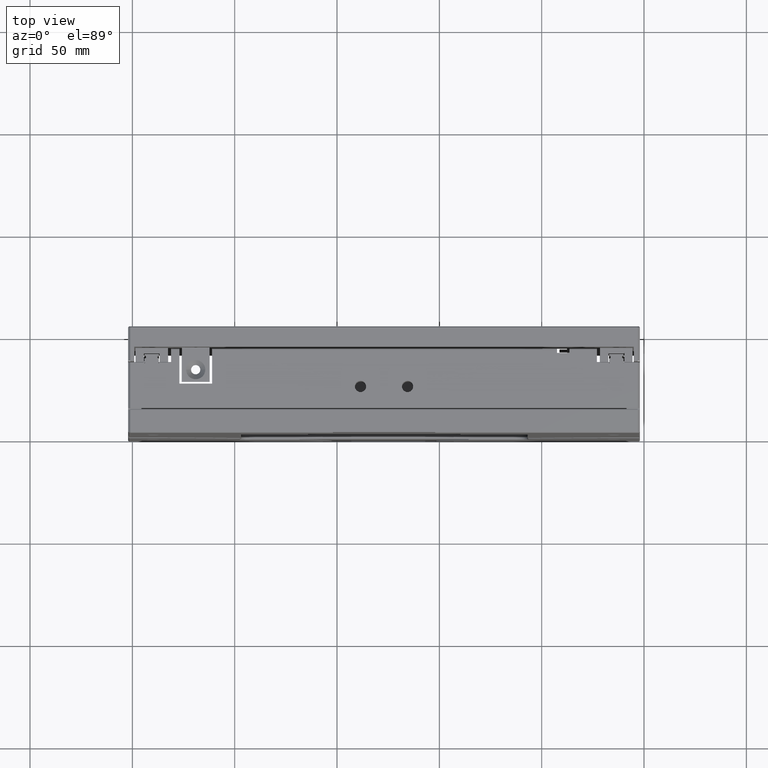
[diagram: clean part render]
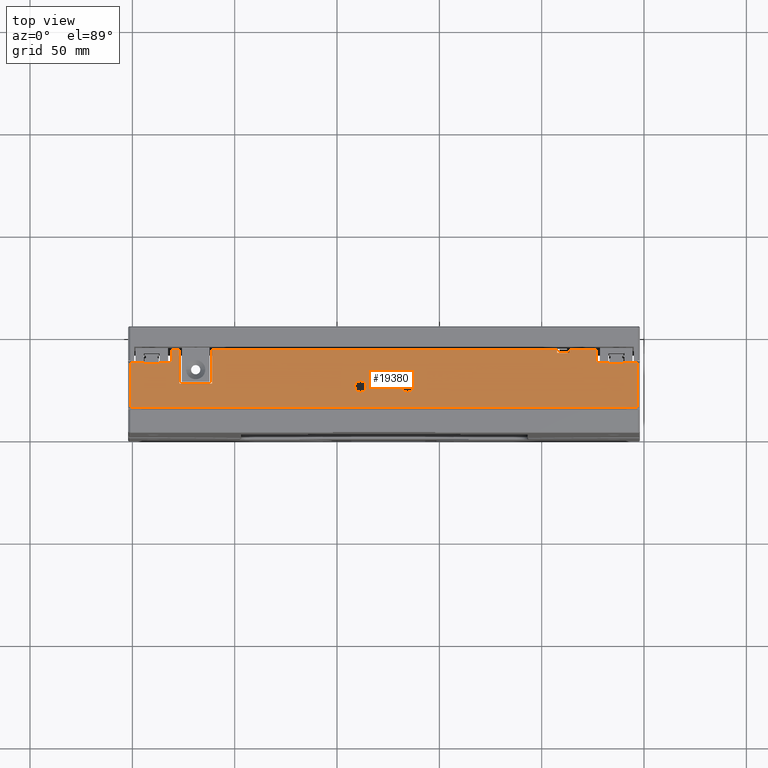
[diagram: same view with one face highlighted and labeled with its STEP entity id]
A machine part, top view. The second image highlights one B-rep face of the part: STEP entity #19380.
In plain terms, the highlighted planar face has unit normal (0, 0, -1).
Its self-contained STEP definition (entity closure, byte-faithful):
#9 = CIRCLE ( 'NONE', #12028, 2.774999999999999500 ) ;
#161 = CARTESIAN_POINT ( 'NONE',  ( -92.54777213772155200, 39.00000000000000700, 250.0000000000000000 ) ) ;
#293 = VECTOR ( 'NONE', #9974, 1000.000000000000000 ) ;
#465 = EDGE_CURVE ( 'NONE', #9425, #8209, #20233, .T. ) ;
#562 = CARTESIAN_POINT ( 'NONE',  ( -52.04777213772152300, 24.00000000000001400, 250.0000000000000600 ) ) ;
#594 = CARTESIAN_POINT ( 'NONE',  ( -73.04777213772152300, 34.50000000000000700, 249.9999999999999700 ) ) ;
#613 = CARTESIAN_POINT ( 'NONE',  ( -86.54777213772155200, 40.80000000000003300, 250.0000000000000600 ) ) ;
#674 = EDGE_CURVE ( 'NONE', #3188, #15399, #8720, .T. ) ;
#732 = EDGE_CURVE ( 'NONE', #11530, #23120, #8695, .T. ) ;
#776 = CARTESIAN_POINT ( 'NONE',  ( -67.04777213772155200, 34.29999999999991900, 249.9999999999999700 ) ) ;
#810 = CARTESIAN_POINT ( 'NONE',  ( -294.0477721377216100, 34.00000000000000700, 249.9999999999999400 ) ) ;
#875 = EDGE_CURVE ( 'NONE', #1565, #9425, #4140, .T. ) ;
#1165 = EDGE_CURVE ( 'NONE', #3776, #11257, #7807, .T. ) ;
#1535 = EDGE_LOOP ( 'NONE', ( #10822, #20528 ) ) ;
#1565 = VERTEX_POINT ( 'NONE', #7939 ) ;
#1592 = VERTEX_POINT ( 'NONE', #613 ) ;
#1601 = ORIENTED_EDGE ( 'NONE', *, *, #875, .T. ) ;
#1619 = CARTESIAN_POINT ( 'NONE',  ( -294.0477721377216100, 34.00000000000000700, 249.9999999999999400 ) ) ;
#1937 = DIRECTION ( 'NONE',  ( 0.0000000000000000000, 1.000000000000000000, 1.224646799147353000E-016 ) ) ;
#2041 = EDGE_CURVE ( 'NONE', #1592, #23821, #17834, .T. ) ;
#2065 = ORIENTED_EDGE ( 'NONE', *, *, #23590, .T. ) ;
#2076 = EDGE_CURVE ( 'NONE', #15399, #3188, #15526, .T. ) ;
#2115 = VECTOR ( 'NONE', #19767, 1000.000000000000000 ) ;
#2239 = FACE_OUTER_BOUND ( 'NONE', #13338, .T. ) ;
#2267 = ORIENTED_EDGE ( 'NONE', *, *, #23528, .T. ) ;
#2323 = CARTESIAN_POINT ( 'NONE',  ( -60.04777213772154500, 34.00000000000000700, 250.0000000000000000 ) ) ;
#2338 = DIRECTION ( 'NONE',  ( 0.0000000000000000000, 1.000000000000000000, 0.0000000000000000000 ) ) ;
#2508 = CARTESIAN_POINT ( 'NONE',  ( -52.04777213772152300, 39.00000000000000700, 250.0000000000000600 ) ) ;
#2618 = CARTESIAN_POINT ( 'NONE',  ( -281.0477721377216100, 40.80000000000003300, 249.9999999999999100 ) ) ;
#2881 = VERTEX_POINT ( 'NONE', #7933 ) ;
#3188 = VERTEX_POINT ( 'NONE', #18549 ) ;
#3364 = ORIENTED_EDGE ( 'NONE', *, *, #2041, .T. ) ;
#3435 = DIRECTION ( 'NONE',  ( -9.714451382752058500E-017, -1.224646799147353200E-016, 1.000000000000000000 ) ) ;
#3636 = ORIENTED_EDGE ( 'NONE', *, *, #5764, .T. ) ;
#3686 = CARTESIAN_POINT ( 'NONE',  ( -165.5477721377215800, 25.37500000000000700, 250.0000000000000000 ) ) ;
#3776 = VERTEX_POINT ( 'NONE', #161 ) ;
#3869 = EDGE_CURVE ( 'NONE', #19202, #13395, #9, .T. ) ;
#3895 = EDGE_CURVE ( 'NONE', #2881, #1565, #4113, .T. ) ;
#4056 = VERTEX_POINT ( 'NONE', #16080 ) ;
#4113 = LINE ( 'NONE', #562, #7249 ) ;
#4140 = LINE ( 'NONE', #19220, #6714 ) ;
#4341 = LINE ( 'NONE', #23526, #9200 ) ;
#4365 = VERTEX_POINT ( 'NONE', #5438 ) ;
#4566 = EDGE_CURVE ( 'NONE', #23823, #8428, #4648, .T. ) ;
#4648 = LINE ( 'NONE', #6234, #16684 ) ;
#4913 = AXIS2_PLACEMENT_3D ( 'NONE', #17500, #22994, #8431 ) ;
#5220 = DIRECTION ( 'NONE',  ( -1.000000000000000000, 5.268570399476662800E-032, -4.302114212150675500E-016 ) ) ;
#5290 = DIRECTION ( 'NONE',  ( 0.0000000000000000000, 1.000000000000000000, 0.0000000000000000000 ) ) ;
#5305 = ORIENTED_EDGE ( 'NONE', *, *, #17285, .T. ) ;
#5374 = CARTESIAN_POINT ( 'NONE',  ( -287.0477721377216100, 34.00000000000000700, 249.9999999999999400 ) ) ;
#5438 = CARTESIAN_POINT ( 'NONE',  ( -261.0477721377215500, 40.80000000000003300, 249.9999999999999700 ) ) ;
#5672 = VERTEX_POINT ( 'NONE', #22874 ) ;
#5764 = EDGE_CURVE ( 'NONE', #23120, #10203, #19802, .T. ) ;
#6011 = CARTESIAN_POINT ( 'NONE',  ( -301.0477721377215500, 12.20000000000016300, 249.9999999999999400 ) ) ;
#6234 = CARTESIAN_POINT ( 'NONE',  ( -287.0477721377216100, 34.00000000000000700, 249.9999999999999400 ) ) ;
#6272 = CARTESIAN_POINT ( 'NONE',  ( -92.54777213772155200, 40.80000000000003300, 250.0000000000000600 ) ) ;
#6541 = ORIENTED_EDGE ( 'NONE', *, *, #15057, .F. ) ;
#6564 = EDGE_CURVE ( 'NONE', #11257, #4365, #14825, .T. ) ;
#6714 = VECTOR ( 'NONE', #17445, 1000.000000000000000 ) ;
#6742 = EDGE_CURVE ( 'NONE', #9918, #1592, #10218, .T. ) ;
#6784 = LINE ( 'NONE', #2323, #14796 ) ;
#6836 = ORIENTED_EDGE ( 'NONE', *, *, #12771, .T. ) ;
#7249 = VECTOR ( 'NONE', #17121, 1000.000000000000000 ) ;
#7288 = ORIENTED_EDGE ( 'NONE', *, *, #12550, .T. ) ;
#7395 = ORIENTED_EDGE ( 'NONE', *, *, #732, .T. ) ;
#7550 = VERTEX_POINT ( 'NONE', #7786 ) ;
#7563 = VECTOR ( 'NONE', #5220, 1000.000000000000000 ) ;
#7577 = VECTOR ( 'NONE', #9886, 1000.000000000000000 ) ;
#7786 = CARTESIAN_POINT ( 'NONE',  ( -287.0477721377216100, 34.29999999999991900, 249.9999999999999400 ) ) ;
#7802 = VECTOR ( 'NONE', #21375, 1000.000000000000000 ) ;
#7807 = LINE ( 'NONE', #23822, #21061 ) ;
#7933 = CARTESIAN_POINT ( 'NONE',  ( -261.0477721377215500, 24.00000000000001400, 250.0000000000000600 ) ) ;
#7939 = CARTESIAN_POINT ( 'NONE',  ( -277.0477721377216100, 24.00000000000001400, 250.0000000000000600 ) ) ;
#7952 = ORIENTED_EDGE ( 'NONE', *, *, #13752, .T. ) ;
#8209 = VERTEX_POINT ( 'NONE', #2618 ) ;
#8239 = DIRECTION ( 'NONE',  ( -1.000000000000000000, 5.268570399476662800E-032, -4.302114212150675500E-016 ) ) ;
#8428 = VERTEX_POINT ( 'NONE', #5374 ) ;
#8431 = DIRECTION ( 'NONE',  ( 0.0000000000000000000, -1.000000000000000000, -1.224646799147353000E-016 ) ) ;
#8560 = ORIENTED_EDGE ( 'NONE', *, *, #465, .T. ) ;
#8563 = VECTOR ( 'NONE', #10382, 1000.000000000000000 ) ;
#8570 = FACE_BOUND ( 'NONE', #1535, .T. ) ;
#8695 = LINE ( 'NONE', #16977, #9836 ) ;
#8720 = CIRCLE ( 'NONE', #19231, 2.774999999999999500 ) ;
#8779 = DIRECTION ( 'NONE',  ( 0.0000000000000000000, 1.000000000000000000, 1.224646799147353000E-016 ) ) ;
#8836 = CARTESIAN_POINT ( 'NONE',  ( -52.04777213772152300, 34.29999999999997600, 250.0000000000000600 ) ) ;
#9200 = VECTOR ( 'NONE', #14311, 1000.000000000000000 ) ;
#9216 = LINE ( 'NONE', #17311, #22466 ) ;
#9329 = LINE ( 'NONE', #17903, #2115 ) ;
#9425 = VERTEX_POINT ( 'NONE', #14322 ) ;
#9660 = VERTEX_POINT ( 'NONE', #11105 ) ;
#9727 = ORIENTED_EDGE ( 'NONE', *, *, #20300, .T. ) ;
#9803 = DIRECTION ( 'NONE',  ( 1.000000000000000000, -5.268570399476662800E-032, 4.302114212150676000E-016 ) ) ;
#9836 = VECTOR ( 'NONE', #20685, 1000.000000000000000 ) ;
#9875 = ORIENTED_EDGE ( 'NONE', *, *, #21119, .F. ) ;
#9885 = DIRECTION ( 'NONE',  ( -9.714451382752058500E-017, -1.224646799147353200E-016, 1.000000000000000000 ) ) ;
#9886 = DIRECTION ( 'NONE',  ( 1.000000000000000000, -5.268570399476662800E-032, 4.302114212150676000E-016 ) ) ;
#9918 = VERTEX_POINT ( 'NONE', #21495 ) ;
#9974 = DIRECTION ( 'NONE',  ( -1.000000000000000000, 5.268570399476662800E-032, -4.302114212150675500E-016 ) ) ;
#10203 = VERTEX_POINT ( 'NONE', #11314 ) ;
#10218 = LINE ( 'NONE', #13687, #16270 ) ;
#10248 = DIRECTION ( 'NONE',  ( 1.000000000000000000, -5.268570399476662800E-032, 4.302114212150675500E-016 ) ) ;
#10382 = DIRECTION ( 'NONE',  ( -1.000000000000000000, 5.268570399476662800E-032, -4.302114212150675500E-016 ) ) ;
#10819 = VECTOR ( 'NONE', #1937, 1000.000000000000000 ) ;
#10822 = ORIENTED_EDGE ( 'NONE', *, *, #2076, .F. ) ;
#11105 = CARTESIAN_POINT ( 'NONE',  ( -53.04777213772148100, 34.30000000000003300, 250.0000000000000600 ) ) ;
#11137 = CARTESIAN_POINT ( 'NONE',  ( -188.5477721377215500, 22.60000000000000900, 250.0000000000000000 ) ) ;
#11257 = VERTEX_POINT ( 'NONE', #6272 ) ;
#11314 = CARTESIAN_POINT ( 'NONE',  ( -73.04777213772152300, 34.29999999999991900, 249.9999999999999700 ) ) ;
#11530 = VERTEX_POINT ( 'NONE', #14458 ) ;
#11651 = VECTOR ( 'NONE', #10248, 1000.000000000000000 ) ;
#11681 = LINE ( 'NONE', #8836, #15714 ) ;
#11783 = CARTESIAN_POINT ( 'NONE',  ( -188.5477721377215500, 19.82500000000001000, 250.0000000000000000 ) ) ;
#11895 = VERTEX_POINT ( 'NONE', #18969 ) ;
#12012 = PLANE ( 'NONE',  #4913 ) ;
#12028 = AXIS2_PLACEMENT_3D ( 'NONE', #22697, #9885, #2338 ) ;
#12170 = LINE ( 'NONE', #22401, #22589 ) ;
#12321 = ORIENTED_EDGE ( 'NONE', *, *, #3869, .F. ) ;
#12410 = ORIENTED_EDGE ( 'NONE', *, *, #17213, .T. ) ;
#12427 = LINE ( 'NONE', #13485, #7577 ) ;
#12550 = EDGE_CURVE ( 'NONE', #22342, #17342, #18300, .T. ) ;
#12569 = ORIENTED_EDGE ( 'NONE', *, *, #4566, .F. ) ;
#12657 = ORIENTED_EDGE ( 'NONE', *, *, #19923, .T. ) ;
#12771 = EDGE_CURVE ( 'NONE', #17342, #9660, #23789, .T. ) ;
#13131 = ORIENTED_EDGE ( 'NONE', *, *, #1165, .T. ) ;
#13168 = DIRECTION ( 'NONE',  ( -9.714451382752058500E-017, -1.224646799147353200E-016, 1.000000000000000000 ) ) ;
#13203 = CARTESIAN_POINT ( 'NONE',  ( -261.0477721377215500, 40.80000000000003300, 249.9999999999999700 ) ) ;
#13270 = DIRECTION ( 'NONE',  ( 0.0000000000000000000, 1.000000000000000000, 1.224646799147352700E-016 ) ) ;
#13338 = EDGE_LOOP ( 'NONE', ( #2267, #7288, #6836, #14807, #9875, #21582, #7395, #3636, #2065, #15255, #3364, #12410, #13131, #17167, #7952, #21356, #1601, #8560, #6541, #9727, #15437, #12569, #5305, #12657 ) ) ;
#13395 = VERTEX_POINT ( 'NONE', #22288 ) ;
#13485 = CARTESIAN_POINT ( 'NONE',  ( -67.04777213772155200, 34.00000000000000700, 249.9999999999999700 ) ) ;
#13687 = CARTESIAN_POINT ( 'NONE',  ( -86.54777213772155200, 40.80000000000003300, 250.0000000000000600 ) ) ;
#13752 = EDGE_CURVE ( 'NONE', #4365, #2881, #9329, .T. ) ;
#13813 = EDGE_LOOP ( 'NONE', ( #21086, #12321 ) ) ;
#14142 = CIRCLE ( 'NONE', #17411, 2.774999999999999500 ) ;
#14220 = CARTESIAN_POINT ( 'NONE',  ( -86.54777213772155200, 39.00000000000000700, 250.0000000000000000 ) ) ;
#14227 = VERTEX_POINT ( 'NONE', #21443 ) ;
#14311 = DIRECTION ( 'NONE',  ( 0.0000000000000000000, 1.000000000000000000, 1.224646799147353000E-016 ) ) ;
#14322 = CARTESIAN_POINT ( 'NONE',  ( -277.0477721377216100, 40.80000000000003300, 249.9999999999999700 ) ) ;
#14458 = CARTESIAN_POINT ( 'NONE',  ( -67.04777213772155200, 34.00000000000000700, 249.9999999999999700 ) ) ;
#14538 = VECTOR ( 'NONE', #17948, 1000.000000000000000 ) ;
#14682 = LINE ( 'NONE', #810, #17831 ) ;
#14796 = VECTOR ( 'NONE', #18888, 1000.000000000000000 ) ;
#14807 = ORIENTED_EDGE ( 'NONE', *, *, #23193, .T. ) ;
#14825 = LINE ( 'NONE', #13203, #15120 ) ;
#14918 = AXIS2_PLACEMENT_3D ( 'NONE', #20124, #3435, #5290 ) ;
#14957 = VECTOR ( 'NONE', #17146, 1000.000000000000000 ) ;
#14962 = LINE ( 'NONE', #2508, #293 ) ;
#15057 = EDGE_CURVE ( 'NONE', #5672, #8209, #12170, .T. ) ;
#15120 = VECTOR ( 'NONE', #17012, 1000.000000000000000 ) ;
#15255 = ORIENTED_EDGE ( 'NONE', *, *, #6742, .T. ) ;
#15399 = VERTEX_POINT ( 'NONE', #3686 ) ;
#15437 = ORIENTED_EDGE ( 'NONE', *, *, #18397, .F. ) ;
#15526 = CIRCLE ( 'NONE', #14918, 2.774999999999999500 ) ;
#15666 = EDGE_CURVE ( 'NONE', #11530, #4056, #12427, .T. ) ;
#15714 = VECTOR ( 'NONE', #16060, 1000.000000000000000 ) ;
#15985 = EDGE_CURVE ( 'NONE', #13395, #19202, #14142, .T. ) ;
#16060 = DIRECTION ( 'NONE',  ( -1.000000000000000000, 5.268570399476662800E-032, -4.302114212150675500E-016 ) ) ;
#16080 = CARTESIAN_POINT ( 'NONE',  ( -60.04777213772154500, 34.00000000000000700, 250.0000000000000000 ) ) ;
#16133 = CARTESIAN_POINT ( 'NONE',  ( -60.04777213772154500, 34.30000000000003300, 250.0000000000000600 ) ) ;
#16270 = VECTOR ( 'NONE', #8239, 1000.000000000000000 ) ;
#16547 = VERTEX_POINT ( 'NONE', #20548 ) ;
#16684 = VECTOR ( 'NONE', #9803, 1000.000000000000000 ) ;
#16977 = CARTESIAN_POINT ( 'NONE',  ( -67.04777213772155200, 34.00000000000000700, 249.9999999999999700 ) ) ;
#17012 = DIRECTION ( 'NONE',  ( -1.000000000000000000, 5.268570399476662800E-032, -4.302114212150675500E-016 ) ) ;
#17054 = CARTESIAN_POINT ( 'NONE',  ( -165.5477721377215800, 22.60000000000000900, 250.0000000000000000 ) ) ;
#17121 = DIRECTION ( 'NONE',  ( -1.000000000000000000, 5.268570399476662800E-032, -4.302114212150675500E-016 ) ) ;
#17146 = DIRECTION ( 'NONE',  ( 0.0000000000000000000, 1.000000000000000000, 1.224646799147352700E-016 ) ) ;
#17167 = ORIENTED_EDGE ( 'NONE', *, *, #6564, .T. ) ;
#17213 = EDGE_CURVE ( 'NONE', #23821, #3776, #14962, .T. ) ;
#17285 = EDGE_CURVE ( 'NONE', #23823, #14227, #14682, .T. ) ;
#17311 = CARTESIAN_POINT ( 'NONE',  ( -301.0477721377215500, 12.00000000000001800, 249.9999999999999400 ) ) ;
#17342 = VERTEX_POINT ( 'NONE', #23019 ) ;
#17411 = AXIS2_PLACEMENT_3D ( 'NONE', #11137, #18415, #18243 ) ;
#17445 = DIRECTION ( 'NONE',  ( 0.0000000000000000000, 1.000000000000000000, 1.224646799147353000E-016 ) ) ;
#17500 = CARTESIAN_POINT ( 'NONE',  ( -52.04777213772152300, 12.00000000000001800, 250.0000000000000600 ) ) ;
#17831 = VECTOR ( 'NONE', #22633, 1000.000000000000000 ) ;
#17834 = LINE ( 'NONE', #21501, #22178 ) ;
#17903 = CARTESIAN_POINT ( 'NONE',  ( -261.0477721377215500, 12.00000000000001800, 249.9999999999999700 ) ) ;
#17948 = DIRECTION ( 'NONE',  ( -1.000000000000000000, 5.268570399476662800E-032, -4.302114212150675500E-016 ) ) ;
#18243 = DIRECTION ( 'NONE',  ( 0.0000000000000000000, 1.000000000000000000, 0.0000000000000000000 ) ) ;
#18300 = LINE ( 'NONE', #21282, #11651 ) ;
#18397 = EDGE_CURVE ( 'NONE', #8428, #7550, #4341, .T. ) ;
#18415 = DIRECTION ( 'NONE',  ( -9.714451382752058500E-017, -1.224646799147353200E-016, 1.000000000000000000 ) ) ;
#18549 = CARTESIAN_POINT ( 'NONE',  ( -165.5477721377215800, 19.82500000000001000, 250.0000000000000000 ) ) ;
#18878 = LINE ( 'NONE', #18939, #14538 ) ;
#18888 = DIRECTION ( 'NONE',  ( 0.0000000000000000000, 1.000000000000000000, 1.224646799147353000E-016 ) ) ;
#18908 = DIRECTION ( 'NONE',  ( 0.0000000000000000000, 1.000000000000000000, 0.0000000000000000000 ) ) ;
#18939 = CARTESIAN_POINT ( 'NONE',  ( -52.04777213772152300, 34.29999999999991900, 250.0000000000000600 ) ) ;
#18969 = CARTESIAN_POINT ( 'NONE',  ( -60.04777213772154500, 34.30000000000003300, 250.0000000000000000 ) ) ;
#19165 = DIRECTION ( 'NONE',  ( 0.0000000000000000000, -1.000000000000000000, -1.224646799147353000E-016 ) ) ;
#19202 = VERTEX_POINT ( 'NONE', #11783 ) ;
#19220 = CARTESIAN_POINT ( 'NONE',  ( -277.0477721377216100, 12.00000000000001800, 249.9999999999999700 ) ) ;
#19231 = AXIS2_PLACEMENT_3D ( 'NONE', #17054, #13168, #18908 ) ;
#19290 = LINE ( 'NONE', #594, #14957 ) ;
#19380 = ADVANCED_FACE ( 'NONE', ( #2239, #21242, #8570 ), #12012, .F. ) ;
#19651 = DIRECTION ( 'NONE',  ( 0.0000000000000000000, -1.000000000000000000, -1.224646799147353000E-016 ) ) ;
#19767 = DIRECTION ( 'NONE',  ( 0.0000000000000000000, -1.000000000000000000, -1.224646799147353000E-016 ) ) ;
#19802 = LINE ( 'NONE', #23512, #8563 ) ;
#19923 = EDGE_CURVE ( 'NONE', #14227, #16547, #11681, .T. ) ;
#20124 = CARTESIAN_POINT ( 'NONE',  ( -165.5477721377215800, 22.60000000000000900, 250.0000000000000000 ) ) ;
#20179 = LINE ( 'NONE', #16133, #7802 ) ;
#20233 = LINE ( 'NONE', #23688, #7563 ) ;
#20300 = EDGE_CURVE ( 'NONE', #5672, #7550, #18878, .T. ) ;
#20459 = CARTESIAN_POINT ( 'NONE',  ( -53.04777213772148100, 12.00000000000001800, 250.0000000000000600 ) ) ;
#20528 = ORIENTED_EDGE ( 'NONE', *, *, #674, .F. ) ;
#20548 = CARTESIAN_POINT ( 'NONE',  ( -301.0477721377215500, 34.29999999999997600, 249.9999999999999400 ) ) ;
#20685 = DIRECTION ( 'NONE',  ( 0.0000000000000000000, 1.000000000000000000, 1.224646799147353000E-016 ) ) ;
#21061 = VECTOR ( 'NONE', #8779, 1000.000000000000000 ) ;
#21086 = ORIENTED_EDGE ( 'NONE', *, *, #15985, .F. ) ;
#21119 = EDGE_CURVE ( 'NONE', #4056, #11895, #6784, .T. ) ;
#21242 = FACE_BOUND ( 'NONE', #13813, .T. ) ;
#21282 = CARTESIAN_POINT ( 'NONE',  ( -52.04777213772152300, 12.20000000000016300, 250.0000000000000600 ) ) ;
#21356 = ORIENTED_EDGE ( 'NONE', *, *, #3895, .T. ) ;
#21375 = DIRECTION ( 'NONE',  ( -1.000000000000000000, 5.268570399476662800E-032, -4.302114212150675500E-016 ) ) ;
#21443 = CARTESIAN_POINT ( 'NONE',  ( -294.0477721377216100, 34.29999999999997600, 249.9999999999999400 ) ) ;
#21495 = CARTESIAN_POINT ( 'NONE',  ( -73.04777213772152300, 40.80000000000003300, 249.9999999999999700 ) ) ;
#21501 = CARTESIAN_POINT ( 'NONE',  ( -86.54777213772155200, 12.00000000000001800, 250.0000000000000600 ) ) ;
#21582 = ORIENTED_EDGE ( 'NONE', *, *, #15666, .F. ) ;
#22178 = VECTOR ( 'NONE', #19651, 1000.000000000000000 ) ;
#22288 = CARTESIAN_POINT ( 'NONE',  ( -188.5477721377215500, 25.37500000000000700, 250.0000000000000000 ) ) ;
#22342 = VERTEX_POINT ( 'NONE', #6011 ) ;
#22401 = CARTESIAN_POINT ( 'NONE',  ( -281.0477721377216100, 34.50000000000000700, 249.9999999999999100 ) ) ;
#22466 = VECTOR ( 'NONE', #19165, 1000.000000000000000 ) ;
#22589 = VECTOR ( 'NONE', #13270, 1000.000000000000000 ) ;
#22633 = DIRECTION ( 'NONE',  ( 0.0000000000000000000, 1.000000000000000000, 1.224646799147353000E-016 ) ) ;
#22697 = CARTESIAN_POINT ( 'NONE',  ( -188.5477721377215500, 22.60000000000000900, 250.0000000000000000 ) ) ;
#22874 = CARTESIAN_POINT ( 'NONE',  ( -281.0477721377216100, 34.29999999999991900, 249.9999999999999700 ) ) ;
#22994 = DIRECTION ( 'NONE',  ( 9.714451382752057200E-017, 1.224646799147353000E-016, -1.000000000000000000 ) ) ;
#23019 = CARTESIAN_POINT ( 'NONE',  ( -53.04777213772148100, 12.20000000000016300, 250.0000000000000600 ) ) ;
#23120 = VERTEX_POINT ( 'NONE', #776 ) ;
#23193 = EDGE_CURVE ( 'NONE', #9660, #11895, #20179, .T. ) ;
#23512 = CARTESIAN_POINT ( 'NONE',  ( -73.04777213772152300, 34.29999999999991900, 250.0000000000000600 ) ) ;
#23526 = CARTESIAN_POINT ( 'NONE',  ( -287.0477721377216100, 34.00000000000000700, 249.9999999999999400 ) ) ;
#23528 = EDGE_CURVE ( 'NONE', #16547, #22342, #9216, .T. ) ;
#23590 = EDGE_CURVE ( 'NONE', #10203, #9918, #19290, .T. ) ;
#23688 = CARTESIAN_POINT ( 'NONE',  ( -281.0477721377216100, 40.80000000000003300, 249.9999999999999700 ) ) ;
#23789 = LINE ( 'NONE', #20459, #10819 ) ;
#23821 = VERTEX_POINT ( 'NONE', #14220 ) ;
#23822 = CARTESIAN_POINT ( 'NONE',  ( -92.54777213772155200, 12.00000000000001800, 250.0000000000000600 ) ) ;
#23823 = VERTEX_POINT ( 'NONE', #1619 ) ;